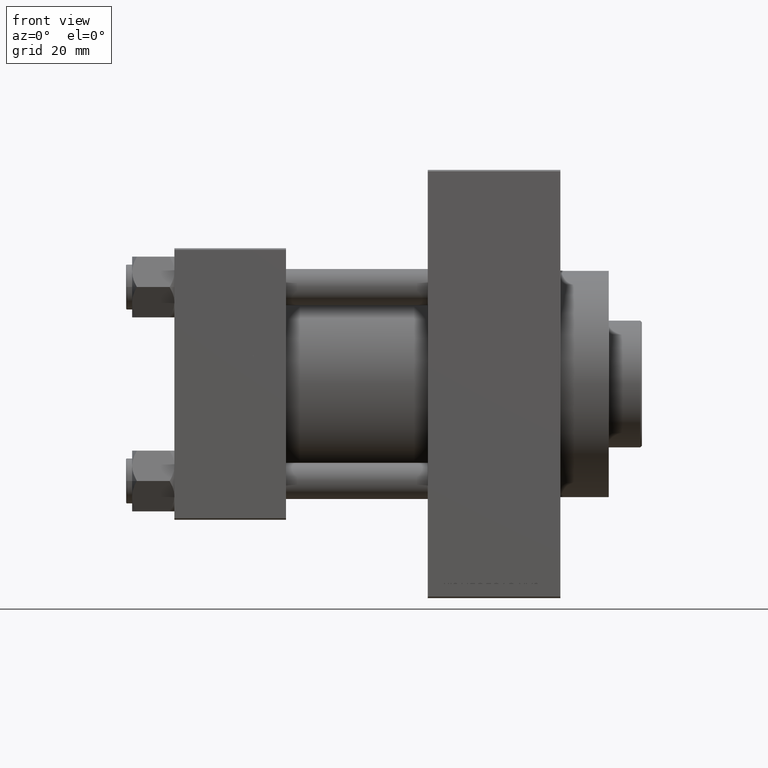
[diagram: clean part render]
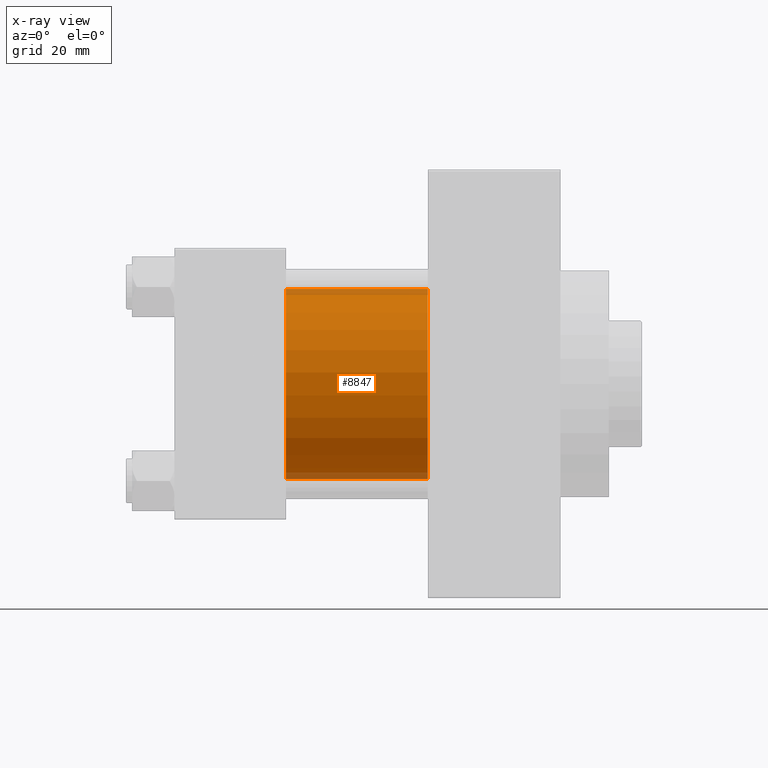
[diagram: x-ray — body ghosted, one internal face saturated and labeled with its STEP entity id]
A machine part, front view, then the same camera in x-ray: the body is ghosted and one INTERNAL B-rep face — a face not visible from any outside direction — is saturated and labeled: STEP entity #8847.
In plain terms, the highlighted cylindrical surface (partial cylindrical patch) has radius 31.5 mm, axis along (-1, -0, -0).
Its self-contained STEP definition (entity closure, byte-faithful):
#4248 = DIRECTION ( 'NONE',  ( 0.000000000000000000, 0.000000000000000000, 1.000000000000000000 ) ) ;
#6215 = DIRECTION ( 'NONE',  ( 1.000000000000000000, 0.000000000000000000, 0.000000000000000000 ) ) ;
#8847 = ADVANCED_FACE ( 'NONE', ( #41904 ), #48879, .F. ) ;
#9227 = CARTESIAN_POINT ( 'NONE',  ( 83.99999999999998579, 1.255552203348951850E-15, -31.50000000000000000 ) ) ;
#9418 = AXIS2_PLACEMENT_3D ( 'NONE', #25973, #34667, #4248 ) ;
#9549 = DIRECTION ( 'NONE',  ( -1.000000000000000000, -0.000000000000000000, -0.000000000000000000 ) ) ;
#9786 = CARTESIAN_POINT ( 'NONE',  ( 83.99999999999998579, 1.255552203348951850E-15, -31.50000000000000000 ) ) ;
#10596 = ORIENTED_EDGE ( 'NONE', *, *, #22796, .T. ) ;
#11280 = CIRCLE ( 'NONE', #47910, 31.50000000000000000 ) ;
#11834 = CARTESIAN_POINT ( 'NONE',  ( 83.99999999999998579, -2.602085213965210642E-15, 31.50000000000000000 ) ) ;
#13851 = AXIS2_PLACEMENT_3D ( 'NONE', #24266, #28007, #43208 ) ;
#14487 = VERTEX_POINT ( 'NONE', #11834 ) ;
#14873 = CARTESIAN_POINT ( 'NONE',  ( 83.99999999999998579, -2.602085213965210642E-15, 31.50000000000000000 ) ) ;
#20946 = DIRECTION ( 'NONE',  ( 0.000000000000000000, 0.000000000000000000, -1.000000000000000000 ) ) ;
#20975 = EDGE_CURVE ( 'NONE', #29461, #28784, #28192, .T. ) ;
#22796 = EDGE_CURVE ( 'NONE', #14487, #26706, #11280, .T. ) ;
#24266 = CARTESIAN_POINT ( 'NONE',  ( 37.00000000000000000, -2.602085213965210642E-15, 0.000000000000000000 ) ) ;
#25033 = VECTOR ( 'NONE', #9549, 1000.000000000000000 ) ;
#25973 = CARTESIAN_POINT ( 'NONE',  ( 83.99999999999998579, -2.602085213965210642E-15, 0.000000000000000000 ) ) ;
#26706 = VERTEX_POINT ( 'NONE', #9227 ) ;
#28007 = DIRECTION ( 'NONE',  ( 1.000000000000000000, 0.000000000000000000, 0.000000000000000000 ) ) ;
#28192 = CIRCLE ( 'NONE', #13851, 31.50000000000000000 ) ;
#28784 = VERTEX_POINT ( 'NONE', #33278 ) ;
#29461 = VERTEX_POINT ( 'NONE', #39641 ) ;
#30683 = EDGE_CURVE ( 'NONE', #14487, #29461, #41556, .T. ) ;
#31328 = VECTOR ( 'NONE', #48307, 1000.000000000000000 ) ;
#32776 = EDGE_CURVE ( 'NONE', #26706, #28784, #43697, .T. ) ;
#33278 = CARTESIAN_POINT ( 'NONE',  ( 37.00000000000000000, 1.255552203348951850E-15, -31.50000000000000000 ) ) ;
#34667 = DIRECTION ( 'NONE',  ( -1.000000000000000000, -0.000000000000000000, -0.000000000000000000 ) ) ;
#36880 = CARTESIAN_POINT ( 'NONE',  ( 83.99999999999998579, -2.602085213965210642E-15, 0.000000000000000000 ) ) ;
#39641 = CARTESIAN_POINT ( 'NONE',  ( 37.00000000000000000, -2.602085213965210642E-15, 31.50000000000000000 ) ) ;
#41556 = LINE ( 'NONE', #14873, #31328 ) ;
#41649 = ORIENTED_EDGE ( 'NONE', *, *, #32776, .T. ) ;
#41904 = FACE_OUTER_BOUND ( 'NONE', #47962, .T. ) ;
#43208 = DIRECTION ( 'NONE',  ( 0.000000000000000000, 0.000000000000000000, -1.000000000000000000 ) ) ;
#43697 = LINE ( 'NONE', #9786, #25033 ) ;
#45105 = ORIENTED_EDGE ( 'NONE', *, *, #30683, .F. ) ;
#45847 = ORIENTED_EDGE ( 'NONE', *, *, #20975, .F. ) ;
#47910 = AXIS2_PLACEMENT_3D ( 'NONE', #36880, #6215, #20946 ) ;
#47962 = EDGE_LOOP ( 'NONE', ( #10596, #41649, #45847, #45105 ) ) ;
#48307 = DIRECTION ( 'NONE',  ( -1.000000000000000000, -0.000000000000000000, -0.000000000000000000 ) ) ;
#48879 = CYLINDRICAL_SURFACE ( 'NONE', #9418, 31.50000000000000000 ) ;